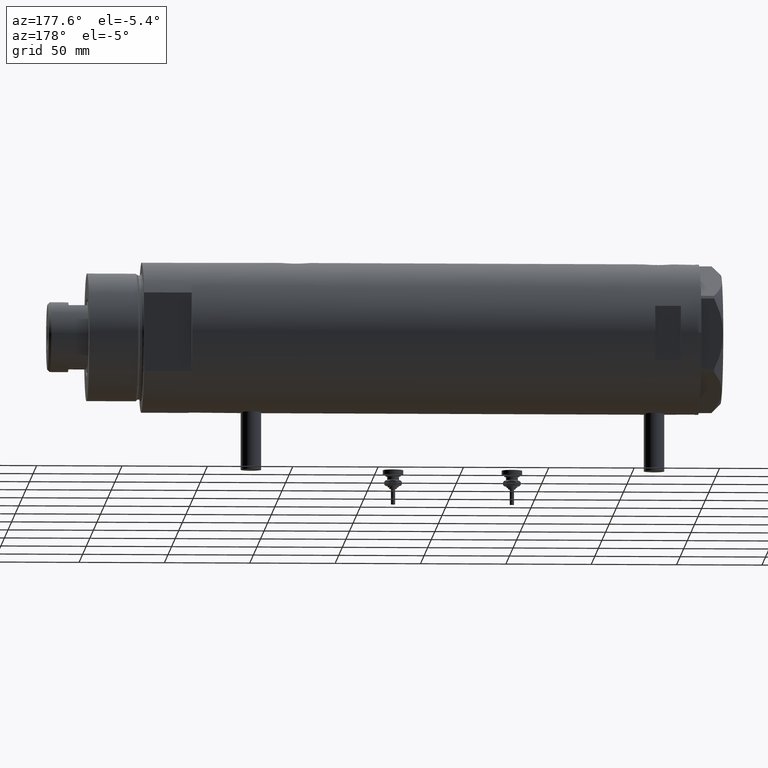
[diagram: clean part render]
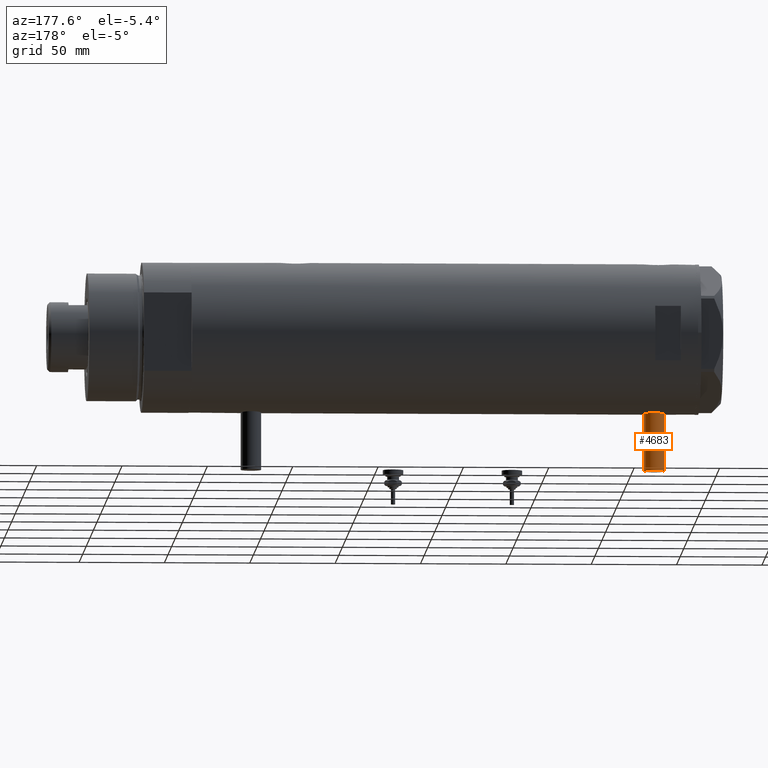
[diagram: same view with one face highlighted and labeled with its STEP entity id]
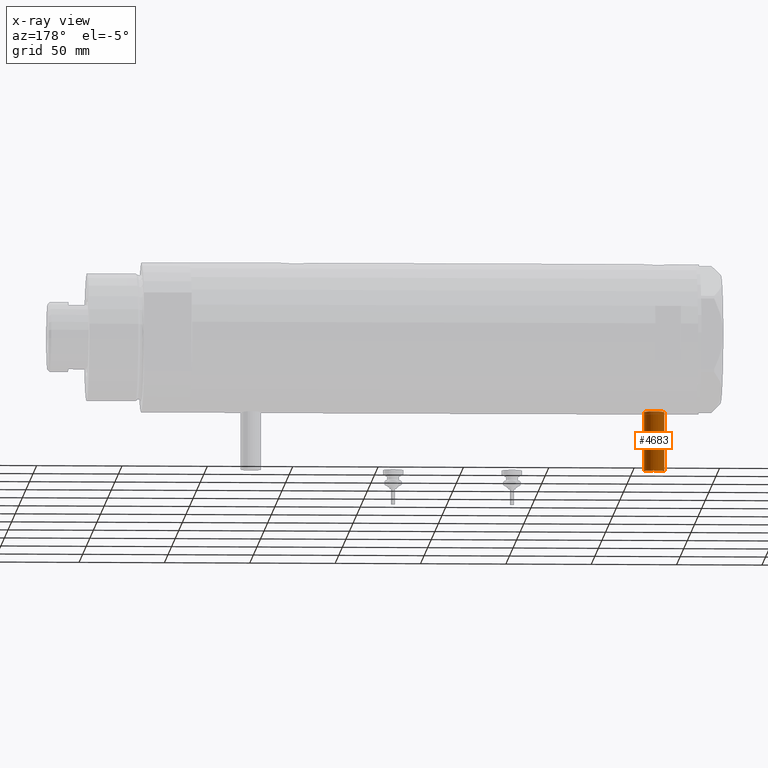
[diagram: x-ray of the same camera — body ghosted, the highlighted face saturated]
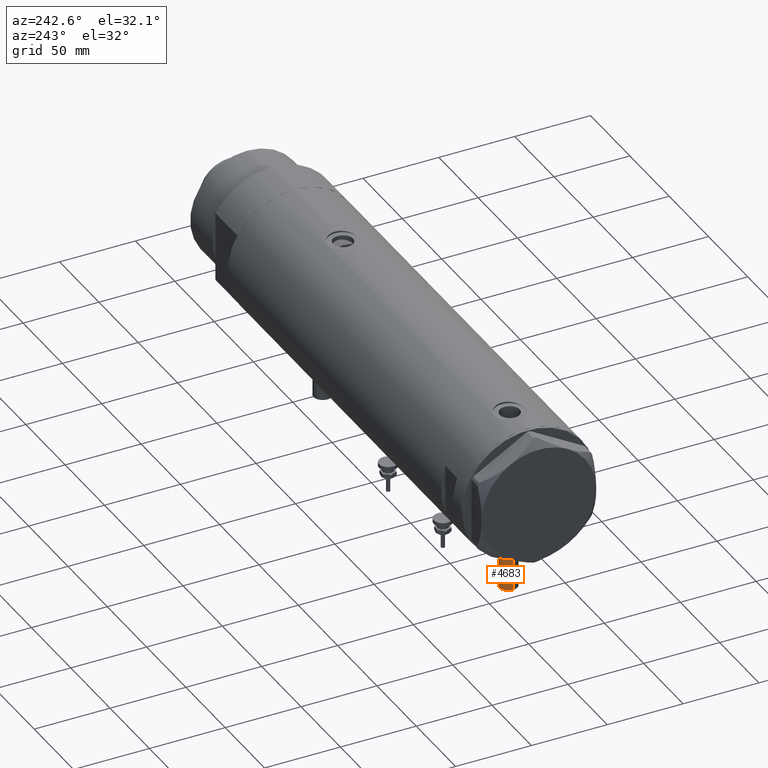
[diagram: same view with one face highlighted and labeled with its STEP entity id]
A machine part, auxiliary view. The second image highlights one B-rep face of the part: STEP entity #4683.
The next image is the same camera in x-ray: the body ghosted, the highlighted face saturated — about 0% of this face is hidden behind the body in this view.
A second angle (auxiliary view) of the same face is appended — the face is thin or edge-on in the first view.
In plain terms, the highlighted cylindrical surface (edge-blend (fillet) strip) has radius 6 mm, axis along (0, 0, 1).
Its self-contained STEP definition (entity closure, byte-faithful):
#31 = EDGE_CURVE ( 'NONE', #5491, #2010, #5147, .T. ) ;
#53 = DIRECTION ( 'NONE',  ( 0.000000000000000000, 0.000000000000000000, 1.000000000000000000 ) ) ;
#67 = ORIENTED_EDGE ( 'NONE', *, *, #31, .T. ) ;
#278 = EDGE_CURVE ( 'NONE', #1499, #5491, #5959, .T. ) ;
#862 = CARTESIAN_POINT ( 'NONE',  ( -77.50000000000000000, 7.347880794884152277E-16, 130.2000000000000171 ) ) ;
#1157 = CARTESIAN_POINT ( 'NONE',  ( -77.50000000000000000, 0.000000000000000000, 124.2000000000000028 ) ) ;
#1217 = FACE_OUTER_BOUND ( 'NONE', #3188, .T. ) ;
#1250 = DIRECTION ( 'NONE',  ( 0.000000000000000000, 0.000000000000000000, -1.000000000000000000 ) ) ;
#1499 = VERTEX_POINT ( 'NONE', #862 ) ;
#1657 = CARTESIAN_POINT ( 'NONE',  ( -77.50000000000000000, 0.000000000000000000, 118.1999999999999886 ) ) ;
#1730 = CYLINDRICAL_SURFACE ( 'NONE', #5397, 6.000000000000019540 ) ;
#1744 = LINE ( 'NONE', #3166, #5007 ) ;
#1916 = DIRECTION ( 'NONE',  ( 1.000000000000000000, -0.000000000000000000, -0.000000000000000000 ) ) ;
#1940 = CARTESIAN_POINT ( 'NONE',  ( -42.79999999999999716, 7.347880794884152277E-16, 130.2000000000000171 ) ) ;
#2010 = VERTEX_POINT ( 'NONE', #2813 ) ;
#2162 = VECTOR ( 'NONE', #1916, 1000.000000000000000 ) ;
#2598 = CIRCLE ( 'NONE', #3268, 6.000000000000005329 ) ;
#2813 = CARTESIAN_POINT ( 'NONE',  ( -42.79999999999999716, 0.000000000000000000, 118.1999999999999886 ) ) ;
#3000 = DIRECTION ( 'NONE',  ( 1.000000000000000000, -0.000000000000000000, -0.000000000000000000 ) ) ;
#3029 = DIRECTION ( 'NONE',  ( -1.000000000000000000, 0.000000000000000000, 0.000000000000000000 ) ) ;
#3166 = CARTESIAN_POINT ( 'NONE',  ( -77.50000000000000000, 0.000000000000000000, 118.1999999999999886 ) ) ;
#3188 = EDGE_LOOP ( 'NONE', ( #3325, #5445, #67, #5341 ) ) ;
#3268 = AXIS2_PLACEMENT_3D ( 'NONE', #3474, #3029, #5322 ) ;
#3325 = ORIENTED_EDGE ( 'NONE', *, *, #5275, .F. ) ;
#3474 = CARTESIAN_POINT ( 'NONE',  ( -77.50000000000000000, 0.000000000000000000, 124.2000000000000028 ) ) ;
#4096 = VERTEX_POINT ( 'NONE', #1657 ) ;
#4188 = CARTESIAN_POINT ( 'NONE',  ( -42.79999999999999716, 0.000000000000000000, 124.2000000000000028 ) ) ;
#4655 = DIRECTION ( 'NONE',  ( -1.000000000000000000, 0.000000000000000000, 0.000000000000000000 ) ) ;
#4683 = ADVANCED_FACE ( 'NONE', ( #1217 ), #1730, .T. ) ;
#5007 = VECTOR ( 'NONE', #5805, 1000.000000000000000 ) ;
#5147 = CIRCLE ( 'NONE', #5937, 6.000000000000005329 ) ;
#5275 = EDGE_CURVE ( 'NONE', #1499, #4096, #2598, .T. ) ;
#5322 = DIRECTION ( 'NONE',  ( 0.000000000000000000, 0.000000000000000000, 1.000000000000000000 ) ) ;
#5341 = ORIENTED_EDGE ( 'NONE', *, *, #5993, .F. ) ;
#5397 = AXIS2_PLACEMENT_3D ( 'NONE', #1157, #3000, #1250 ) ;
#5445 = ORIENTED_EDGE ( 'NONE', *, *, #278, .T. ) ;
#5491 = VERTEX_POINT ( 'NONE', #1940 ) ;
#5583 = CARTESIAN_POINT ( 'NONE',  ( -77.50000000000000000, 7.347880794884138472E-16, 130.2000000000000171 ) ) ;
#5805 = DIRECTION ( 'NONE',  ( 1.000000000000000000, -0.000000000000000000, -0.000000000000000000 ) ) ;
#5937 = AXIS2_PLACEMENT_3D ( 'NONE', #4188, #4655, #53 ) ;
#5959 = LINE ( 'NONE', #5583, #2162 ) ;
#5993 = EDGE_CURVE ( 'NONE', #4096, #2010, #1744, .T. ) ;